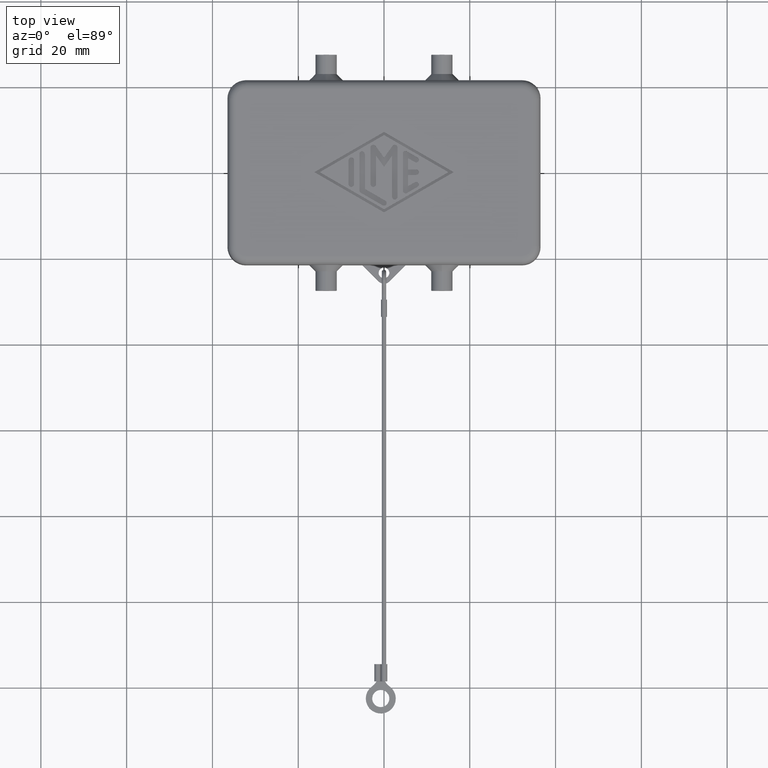
[diagram: clean part render]
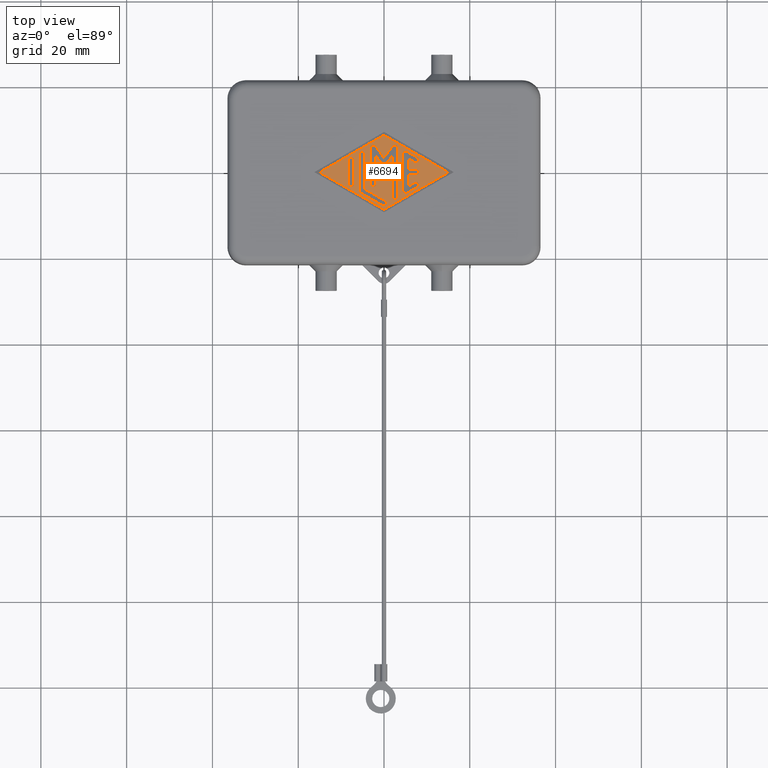
[diagram: same view with one face highlighted and labeled with its STEP entity id]
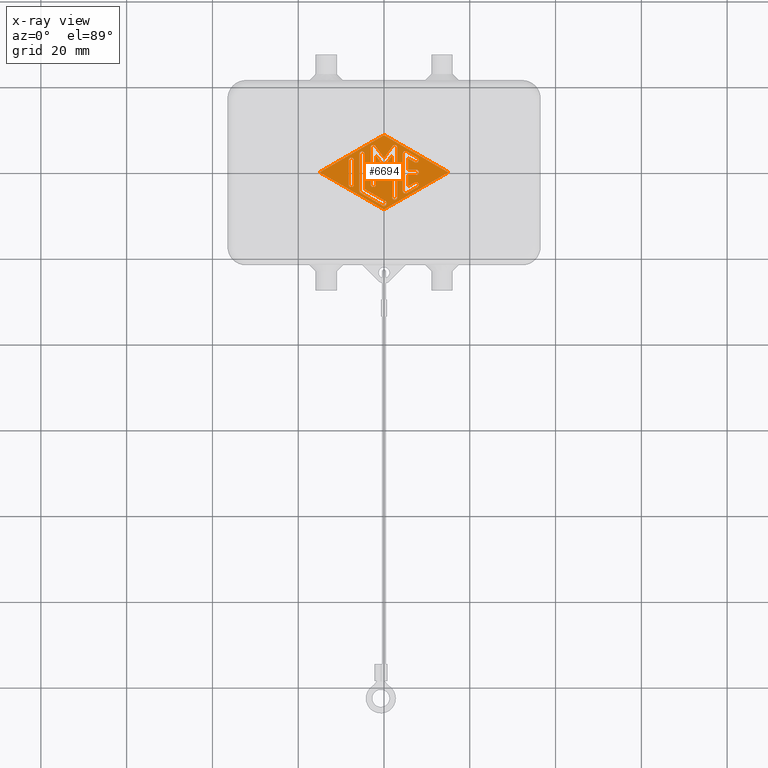
[diagram: x-ray of the same camera — body ghosted, the highlighted face saturated]
A machine part, top view. The second image highlights one B-rep face of the part: STEP entity #6694.
The next image is the same camera in x-ray: the body ghosted, the highlighted face saturated — about 0% of this face is hidden behind the body in this view.
In plain terms, the highlighted planar face has unit normal (0, 0, 1).
Its self-contained STEP definition (entity closure, byte-faithful):
#2249=CARTESIAN_POINT('',(4.374999999999995,4.325721487528326,12.000000000000002));
#2250=VERTEX_POINT('',#2249);
#2257=CARTESIAN_POINT('',(4.374999999999995,-4.325721487528320,12.000000000000002));
#2258=VERTEX_POINT('',#2257);
#2259=CARTESIAN_POINT('',(4.374999999999995,-4.325721487528320,12.000000000000002));
#2260=DIRECTION('',(0.0,1.0,0.0));
#2261=VECTOR('',#2260,8.651442975056646);
#2262=LINE('',#2259,#2261);
#2263=EDGE_CURVE('',#2258,#2250,#2262,.T.);
#2289=CARTESIAN_POINT('',(5.312326533430989,-4.867087478808698,12.000000000000002));
#2290=VERTEX_POINT('',#2289);
#2291=CARTESIAN_POINT('',(5.000000000000001,-4.325721487528320,12.000000000000002));
#2292=DIRECTION('',(0.0,0.0,-1.0));
#2293=DIRECTION('',(1.0,0.0,0.0));
#2294=AXIS2_PLACEMENT_3D('',#2291,#2292,#2293);
#2295=CIRCLE('',#2294,0.625000000000000);
#2296=EDGE_CURVE('',#2290,#2258,#2295,.T.);
#2321=CARTESIAN_POINT('',(7.812326533430980,-3.424779786501008,12.000000000000002));
#2322=VERTEX_POINT('',#2321);
#2323=CARTESIAN_POINT('',(7.812326533430980,-3.424779786501008,12.000000000000002));
#2324=DIRECTION('',(-0.866185586048600,-0.499722453489578,0.0));
#2325=VECTOR('',#2324,2.886217503808382);
#2326=LINE('',#2323,#2325);
#2327=EDGE_CURVE('',#2322,#2290,#2326,.T.);
#2353=CARTESIAN_POINT('',(7.187673466569009,-2.342047803940258,12.000000000000002));
#2354=VERTEX_POINT('',#2353);
#2355=CARTESIAN_POINT('',(7.499999999999995,-2.883413795220633,12.000000000000002));
#2356=DIRECTION('',(0.0,0.0,-1.000000000000000));
#2357=DIRECTION('',(-0.499722453489577,0.866185586048601,0.0));
#2358=AXIS2_PLACEMENT_3D('',#2355,#2356,#2357);
#2359=CIRCLE('',#2358,0.625000000000002);
#2360=EDGE_CURVE('',#2354,#2322,#2359,.T.);
#2385=CARTESIAN_POINT('',(5.624999999999995,-3.243590188499308,12.000000000000002));
#2386=VERTEX_POINT('',#2385);
#2387=CARTESIAN_POINT('',(5.624999999999995,-3.243590188499308,12.000000000000002));
#2388=DIRECTION('',(0.866185586048600,0.499722453489578,0.0));
#2389=VECTOR('',#2388,1.804086204779372);
#2390=LINE('',#2387,#2389);
#2391=EDGE_CURVE('',#2386,#2354,#2390,.T.);
#2416=CARTESIAN_POINT('',(5.624999999999995,-0.625000000000001,12.000000000000002));
#2417=VERTEX_POINT('',#2416);
#2418=CARTESIAN_POINT('',(5.624999999999995,-0.625000000000001,12.000000000000002));
#2419=DIRECTION('',(0.0,-1.0,0.0));
#2420=VECTOR('',#2419,2.618590188499306);
#2421=LINE('',#2418,#2420);
#2422=EDGE_CURVE('',#2417,#2386,#2421,.T.);
#2447=CARTESIAN_POINT('',(7.499999999999995,-0.625000000000001,12.000000000000002));
#2448=VERTEX_POINT('',#2447);
#2449=CARTESIAN_POINT('',(7.499999999999995,-0.625000000000001,12.000000000000002));
#2450=DIRECTION('',(-1.0,0.0,0.0));
#2451=VECTOR('',#2450,1.875000000000000);
#2452=LINE('',#2449,#2451);
#2453=EDGE_CURVE('',#2448,#2417,#2452,.T.);
#2479=CARTESIAN_POINT('',(7.499999999999995,0.624999999999999,12.000000000000002));
#2480=VERTEX_POINT('',#2479);
#2481=CARTESIAN_POINT('',(7.499999999999995,-1.312233E-015,12.000000000000002));
#2482=DIRECTION('',(0.0,0.0,-1.0));
#2483=DIRECTION('',(0.0,1.0,0.0));
#2484=AXIS2_PLACEMENT_3D('',#2481,#2482,#2483);
#2485=CIRCLE('',#2484,0.625000000000000);
#2486=EDGE_CURVE('',#2480,#2448,#2485,.T.);
#2511=CARTESIAN_POINT('',(5.624999999999995,0.624999999999996,12.000000000000002));
#2512=VERTEX_POINT('',#2511);
#2513=CARTESIAN_POINT('',(5.624999999999995,0.624999999999996,12.000000000000002));
#2514=DIRECTION('',(1.0,0.0,0.0));
#2515=VECTOR('',#2514,1.875000000000000);
#2516=LINE('',#2513,#2515);
#2517=EDGE_CURVE('',#2512,#2480,#2516,.T.);
#2542=CARTESIAN_POINT('',(5.624999999999995,3.243590188499305,12.000000000000002));
#2543=VERTEX_POINT('',#2542);
#2544=CARTESIAN_POINT('',(5.624999999999995,3.243590188499305,12.000000000000002));
#2545=DIRECTION('',(0.0,-1.0,0.0));
#2546=VECTOR('',#2545,2.618590188499309);
#2547=LINE('',#2544,#2546);
#2548=EDGE_CURVE('',#2543,#2512,#2547,.T.);
#2573=CARTESIAN_POINT('',(7.187673466569010,2.342047803940258,12.000000000000002));
#2574=VERTEX_POINT('',#2573);
#2575=CARTESIAN_POINT('',(7.187673466569010,2.342047803940258,12.000000000000002));
#2576=DIRECTION('',(-0.866185586048600,0.499722453489577,0.0));
#2577=VECTOR('',#2576,1.804086204779372);
#2578=LINE('',#2575,#2577);
#2579=EDGE_CURVE('',#2574,#2543,#2578,.T.);
#2605=CARTESIAN_POINT('',(7.812326533430981,3.424779786501011,12.000000000000002));
#2606=VERTEX_POINT('',#2605);
#2607=CARTESIAN_POINT('',(7.499999999999995,2.883413795220633,12.000000000000002));
#2608=DIRECTION('',(0.0,0.0,-1.0));
#2609=DIRECTION('',(0.499722453489576,0.866185586048601,0.0));
#2610=AXIS2_PLACEMENT_3D('',#2607,#2608,#2609);
#2611=CIRCLE('',#2610,0.625000000000000);
#2612=EDGE_CURVE('',#2606,#2574,#2611,.T.);
#2637=CARTESIAN_POINT('',(5.312326533430981,4.867087478808699,12.000000000000002));
#2638=VERTEX_POINT('',#2637);
#2639=CARTESIAN_POINT('',(5.312326533430981,4.867087478808699,12.000000000000002));
#2640=DIRECTION('',(0.866185586048601,-0.499722453489576,0.0));
#2641=VECTOR('',#2640,2.886217503808390);
#2642=LINE('',#2639,#2641);
#2643=EDGE_CURVE('',#2638,#2606,#2642,.T.);
#2667=CARTESIAN_POINT('',(4.999999999999997,4.325721487528326,12.000000000000002));
#2668=DIRECTION('',(0.0,0.0,-1.0));
#2669=DIRECTION('',(-0.499722453489577,-0.866185586048601,0.0));
#2670=AXIS2_PLACEMENT_3D('',#2667,#2668,#2669);
#2671=CIRCLE('',#2670,0.625000000000000);
#2672=EDGE_CURVE('',#2250,#2638,#2671,.T.);
#2716=CARTESIAN_POINT('',(-7.000000000000004,2.811298410605247,12.000000000000002));
#2717=VERTEX_POINT('',#2716);
#2724=CARTESIAN_POINT('',(-8.250000000000004,2.811298410605247,12.000000000000002));
#2725=VERTEX_POINT('',#2724);
#2726=CARTESIAN_POINT('',(-7.625000000000004,2.811298410605247,12.000000000000002));
#2727=DIRECTION('',(0.0,0.0,-1.0));
#2728=DIRECTION('',(-1.0,0.0,0.0));
#2729=AXIS2_PLACEMENT_3D('',#2726,#2727,#2728);
#2730=CIRCLE('',#2729,0.625000000000000);
#2731=EDGE_CURVE('',#2725,#2717,#2730,.T.);
#2756=CARTESIAN_POINT('',(-8.250000000000004,-2.811298410605247,12.000000000000002));
#2757=VERTEX_POINT('',#2756);
#2758=CARTESIAN_POINT('',(-8.250000000000004,-2.811298410605247,12.000000000000002));
#2759=DIRECTION('',(0.0,1.0,0.0));
#2760=VECTOR('',#2759,5.622596821210494);
#2761=LINE('',#2758,#2760);
#2762=EDGE_CURVE('',#2757,#2725,#2761,.T.);
#2788=CARTESIAN_POINT('',(-7.000000000000004,-2.811298410605247,12.000000000000002));
#2789=VERTEX_POINT('',#2788);
#2790=CARTESIAN_POINT('',(-7.625000000000004,-2.811298410605247,12.000000000000002));
#2791=DIRECTION('',(0.0,0.0,-1.0));
#2792=DIRECTION('',(1.0,0.0,0.0));
#2793=AXIS2_PLACEMENT_3D('',#2790,#2791,#2792);
#2794=CIRCLE('',#2793,0.625000000000000);
#2795=EDGE_CURVE('',#2789,#2757,#2794,.T.);
#2818=CARTESIAN_POINT('',(-7.000000000000004,2.811298410605247,12.000000000000002));
#2819=DIRECTION('',(0.0,-1.0,0.0));
#2820=VECTOR('',#2819,5.622596821210494);
#2821=LINE('',#2818,#2820);
#2822=EDGE_CURVE('',#2717,#2789,#2821,.T.);
#2855=CARTESIAN_POINT('',(-3.193338E-015,-8.653445624047905,12.000000000000002));
#2856=VERTEX_POINT('',#2855);
#2863=CARTESIAN_POINT('',(-14.999305748349697,5.551115E-016,12.000000000000002));
#2864=VERTEX_POINT('',#2863);
#2865=CARTESIAN_POINT('',(-14.999305748349697,5.551115E-016,12.000000000000002));
#2866=DIRECTION('',(0.866185586048600,-0.499722453489577,0.0));
#2867=VECTOR('',#2866,17.316503518344284);
#2868=LINE('',#2865,#2867);
#2869=EDGE_CURVE('',#2864,#2856,#2868,.T.);
#2893=CARTESIAN_POINT('',(14.999305748349691,1.379107E-015,12.000000000000002));
#2894=VERTEX_POINT('',#2893);
#2901=CARTESIAN_POINT('',(-3.193338E-015,-8.653445624047905,12.000000000000002));
#2902=DIRECTION('',(0.866185586048600,0.499722453489577,0.0));
#2903=VECTOR('',#2902,17.316503518344287);
#2904=LINE('',#2901,#2903);
#2905=EDGE_CURVE('',#2856,#2894,#2904,.T.);
#2924=CARTESIAN_POINT('',(-3.193338E-015,8.653445624047901,12.000000000000002));
#2925=VERTEX_POINT('',#2924);
#2932=CARTESIAN_POINT('',(14.999305748349691,1.379107E-015,12.000000000000002));
#2933=DIRECTION('',(-0.866185586048600,0.499722453489577,0.0));
#2934=VECTOR('',#2933,17.316503518344284);
#2935=LINE('',#2932,#2934);
#2936=EDGE_CURVE('',#2894,#2925,#2935,.T.);
#2954=CARTESIAN_POINT('',(-3.193338E-015,8.653445624047901,12.000000000000002));
#2955=DIRECTION('',(-0.866185586048600,-0.499722453489577,0.0));
#2956=VECTOR('',#2955,17.316503518344284);
#2957=LINE('',#2954,#2956);
#2958=EDGE_CURVE('',#2925,#2864,#2957,.T.);
#3121=CARTESIAN_POINT('',(-5.750000000000005,4.253606102912936,12.000000000000002));
#3122=VERTEX_POINT('',#3121);
#3129=CARTESIAN_POINT('',(-5.750000000000003,-4.253606102912952,12.000000000000002));
#3130=VERTEX_POINT('',#3129);
#3131=CARTESIAN_POINT('',(-5.750000000000003,-4.253606102912952,12.000000000000002));
#3132=DIRECTION('',(0.0,1.0,0.0));
#3133=VECTOR('',#3132,8.507212205825887);
#3134=LINE('',#3131,#3133);
#3135=EDGE_CURVE('',#3130,#3122,#3134,.T.);
#3161=CARTESIAN_POINT('',(-5.437326533430992,-4.794972094193331,12.000000000000002));
#3162=VERTEX_POINT('',#3161);
#3163=CARTESIAN_POINT('',(-5.125000000000005,-4.253606102912952,12.000000000000002));
#3164=DIRECTION('',(0.0,0.0,-1.0));
#3165=DIRECTION('',(-1.0,0.0,0.0));
#3166=AXIS2_PLACEMENT_3D('',#3163,#3164,#3165);
#3167=CIRCLE('',#3166,0.625000000000000);
#3168=EDGE_CURVE('',#3162,#3130,#3167,.T.);
#3193=CARTESIAN_POINT('',(-0.312326533430986,-7.751702863424086,12.000000000000002));
#3194=VERTEX_POINT('',#3193);
#3195=CARTESIAN_POINT('',(-0.312326533430986,-7.751702863424086,12.000000000000002));
#3196=DIRECTION('',(-0.866185586048602,0.499722453489575,0.0));
#3197=VECTOR('',#3196,5.916745882807200);
#3198=LINE('',#3195,#3197);
#3199=EDGE_CURVE('',#3194,#3162,#3198,.T.);
#3225=CARTESIAN_POINT('',(0.312326533430988,-6.668970880863334,12.000000000000002));
#3226=VERTEX_POINT('',#3225);
#3227=CARTESIAN_POINT('',(2.120750E-015,-7.210336872143708,12.000000000000002));
#3228=DIRECTION('',(0.0,0.0,-1.000000000000000));
#3229=DIRECTION('',(-0.499722453489577,-0.866185586048601,0.0));
#3230=AXIS2_PLACEMENT_3D('',#3227,#3228,#3229);
#3231=CIRCLE('',#3230,0.624999999999998);
#3232=EDGE_CURVE('',#3226,#3194,#3231,.T.);
#3257=CARTESIAN_POINT('',(-4.500000000000013,-3.892628650037788,12.000000000000002));
#3258=VERTEX_POINT('',#3257);
#3259=CARTESIAN_POINT('',(-4.500000000000013,-3.892628650037788,12.000000000000002));
#3260=DIRECTION('',(0.866185586048603,-0.499722453489573,0.0));
#3261=VECTOR('',#3260,5.555768429932029);
#3262=LINE('',#3259,#3261);
#3263=EDGE_CURVE('',#3258,#3226,#3262,.T.);
#3288=CARTESIAN_POINT('',(-4.500000000000005,4.253606102912936,12.000000000000002));
#3289=VERTEX_POINT('',#3288);
#3290=CARTESIAN_POINT('',(-4.500000000000005,4.253606102912936,12.000000000000002));
#3291=DIRECTION('',(0.0,-1.0,0.0));
#3292=VECTOR('',#3291,8.146234752950724);
#3293=LINE('',#3290,#3292);
#3294=EDGE_CURVE('',#3289,#3258,#3293,.T.);
#3318=CARTESIAN_POINT('',(-5.125000000000005,4.253606102912936,12.000000000000002));
#3319=DIRECTION('',(0.0,0.0,-1.0));
#3320=DIRECTION('',(1.0,0.0,0.0));
#3321=AXIS2_PLACEMENT_3D('',#3318,#3319,#3320);
#3322=CIRCLE('',#3321,0.625000000000000);
#3323=EDGE_CURVE('',#3122,#3289,#3322,.T.);
#3359=CARTESIAN_POINT('',(-3.193338E-015,1.250000000000000,12.000000000000002));
#3360=VERTEX_POINT('',#3359);
#3367=CARTESIAN_POINT('',(1.874999999999996,3.839299689476821,12.000000000000002));
#3368=VERTEX_POINT('',#3367);
#3369=CARTESIAN_POINT('',(1.874999999999996,3.839299689476821,12.000000000000002));
#3370=DIRECTION('',(-0.586507735518138,-0.809943625308197,0.0));
#3371=VECTOR('',#3370,3.196888781600754);
#3372=LINE('',#3369,#3371);
#3373=EDGE_CURVE('',#3368,#3360,#3372,.T.);
#3398=CARTESIAN_POINT('',(1.874999999999996,-5.768029179836017,12.000000000000002));
#3399=VERTEX_POINT('',#3398);
#3400=CARTESIAN_POINT('',(1.874999999999996,-5.768029179836017,12.000000000000002));
#3401=DIRECTION('',(0.0,1.0,0.0));
#3402=VECTOR('',#3401,9.607328869312838);
#3403=LINE('',#3400,#3402);
#3404=EDGE_CURVE('',#3399,#3368,#3403,.T.);
#3430=CARTESIAN_POINT('',(3.124999999999995,-5.768029179836017,12.000000000000002));
#3431=VERTEX_POINT('',#3430);
#3432=CARTESIAN_POINT('',(2.499999999999995,-5.768029179836017,12.000000000000002));
#3433=DIRECTION('',(0.0,0.0,-1.0));
#3434=DIRECTION('',(-1.0,0.0,0.0));
#3435=AXIS2_PLACEMENT_3D('',#3432,#3433,#3434);
#3436=CIRCLE('',#3435,0.625000000000000);
#3437=EDGE_CURVE('',#3431,#3399,#3436,.T.);
#3462=CARTESIAN_POINT('',(3.124999999999995,5.768029179836017,12.000000000000002));
#3463=VERTEX_POINT('',#3462);
#3464=CARTESIAN_POINT('',(3.124999999999995,5.768029179836017,12.000000000000002));
#3465=DIRECTION('',(0.0,-1.0,0.0));
#3466=VECTOR('',#3465,11.536058359672033);
#3467=LINE('',#3464,#3466);
#3468=EDGE_CURVE('',#3463,#3431,#3467,.T.);
#3494=CARTESIAN_POINT('',(1.993785234182371,6.134596514534854,12.000000000000002));
#3495=VERTEX_POINT('',#3494);
#3496=CARTESIAN_POINT('',(2.499999999999995,5.768029179836017,12.000000000000002));
#3497=DIRECTION('',(0.0,0.0,-1.0));
#3498=DIRECTION('',(1.0,0.0,0.0));
#3499=AXIS2_PLACEMENT_3D('',#3496,#3497,#3498);
#3500=CIRCLE('',#3499,0.625000000000000);
#3501=EDGE_CURVE('',#3495,#3463,#3500,.T.);
#3526=CARTESIAN_POINT('',(-3.193338E-015,3.381259187733842,12.000000000000002));
#3527=VERTEX_POINT('',#3526);
#3528=CARTESIAN_POINT('',(-3.193338E-015,3.381259187733842,12.000000000000002));
#3529=DIRECTION('',(0.586507735518138,0.809943625308197,0.0));
#3530=VECTOR('',#3529,3.399418478975398);
#3531=LINE('',#3528,#3530);
#3532=EDGE_CURVE('',#3527,#3495,#3531,.T.);
#3557=CARTESIAN_POINT('',(-1.993785234182382,6.134596514534851,12.000000000000002));
#3558=VERTEX_POINT('',#3557);
#3559=CARTESIAN_POINT('',(-1.993785234182382,6.134596514534851,12.000000000000002));
#3560=DIRECTION('',(0.586507735518140,-0.809943625308196,0.0));
#3561=VECTOR('',#3560,3.399418478975399);
#3562=LINE('',#3559,#3561);
#3563=EDGE_CURVE('',#3558,#3527,#3562,.T.);
#3589=CARTESIAN_POINT('',(-3.125000000000005,5.768029179836014,12.000000000000002));
#3590=VERTEX_POINT('',#3589);
#3591=CARTESIAN_POINT('',(-2.500000000000005,5.768029179836014,12.000000000000002));
#3592=DIRECTION('',(0.0,0.0,-1.0));
#3593=DIRECTION('',(0.809943625308196,0.586507735518140,0.0));
#3594=AXIS2_PLACEMENT_3D('',#3591,#3592,#3593);
#3595=CIRCLE('',#3594,0.625000000000000);
#3596=EDGE_CURVE('',#3590,#3558,#3595,.T.);
#3621=CARTESIAN_POINT('',(-3.125000000000005,-2.811298410605247,12.000000000000002));
#3622=VERTEX_POINT('',#3621);
#3623=CARTESIAN_POINT('',(-3.125000000000005,-2.811298410605247,12.000000000000002));
#3624=DIRECTION('',(0.0,1.0,0.0));
#3625=VECTOR('',#3624,8.579327590441260);
#3626=LINE('',#3623,#3625);
#3627=EDGE_CURVE('',#3622,#3590,#3626,.T.);
#3653=CARTESIAN_POINT('',(-1.875000000000006,-2.811298410605247,12.000000000000002));
#3654=VERTEX_POINT('',#3653);
#3655=CARTESIAN_POINT('',(-2.500000000000005,-2.811298410605247,12.000000000000002));
#3656=DIRECTION('',(0.0,0.0,-1.0));
#3657=DIRECTION('',(-1.0,0.0,0.0));
#3658=AXIS2_PLACEMENT_3D('',#3655,#3656,#3657);
#3659=CIRCLE('',#3658,0.624999999999999);
#3660=EDGE_CURVE('',#3654,#3622,#3659,.T.);
#3685=CARTESIAN_POINT('',(-1.875000000000007,3.839299689476817,12.000000000000002));
#3686=VERTEX_POINT('',#3685);
#3687=CARTESIAN_POINT('',(-1.875000000000007,3.839299689476817,12.000000000000002));
#3688=DIRECTION('',(0.0,-1.0,0.0));
#3689=VECTOR('',#3688,6.650598100082064);
#3690=LINE('',#3687,#3689);
#3691=EDGE_CURVE('',#3686,#3654,#3690,.T.);
#3714=CARTESIAN_POINT('',(-3.193338E-015,1.250000000000000,12.000000000000002));
#3715=DIRECTION('',(-0.586507735518140,0.809943625308196,0.0));
#3716=VECTOR('',#3715,3.196888781600754);
#3717=LINE('',#3714,#3716);
#3718=EDGE_CURVE('',#3360,#3686,#3717,.T.);
#6638=CARTESIAN_POINT('',(0.0,0.0,12.000000000000002));
#6639=DIRECTION('',(0.0,0.0,1.0));
#6640=DIRECTION('',(1.0,0.0,0.0));
#6641=AXIS2_PLACEMENT_3D('',#6638,#6639,#6640);
#6642=PLANE('',#6641);
#6643=ORIENTED_EDGE('',*,*,#2869,.T.);
#6644=ORIENTED_EDGE('',*,*,#2905,.T.);
#6645=ORIENTED_EDGE('',*,*,#2936,.T.);
#6646=ORIENTED_EDGE('',*,*,#2958,.T.);
#6647=EDGE_LOOP('',(#6643,#6644,#6645,#6646));
#6648=FACE_OUTER_BOUND('',#6647,.T.);
#6649=ORIENTED_EDGE('',*,*,#2263,.T.);
#6650=ORIENTED_EDGE('',*,*,#2672,.T.);
#6651=ORIENTED_EDGE('',*,*,#2643,.T.);
#6652=ORIENTED_EDGE('',*,*,#2612,.T.);
#6653=ORIENTED_EDGE('',*,*,#2579,.T.);
#6654=ORIENTED_EDGE('',*,*,#2548,.T.);
#6655=ORIENTED_EDGE('',*,*,#2517,.T.);
#6656=ORIENTED_EDGE('',*,*,#2486,.T.);
#6657=ORIENTED_EDGE('',*,*,#2453,.T.);
#6658=ORIENTED_EDGE('',*,*,#2422,.T.);
#6659=ORIENTED_EDGE('',*,*,#2391,.T.);
#6660=ORIENTED_EDGE('',*,*,#2360,.T.);
#6661=ORIENTED_EDGE('',*,*,#2327,.T.);
#6662=ORIENTED_EDGE('',*,*,#2296,.T.);
#6663=EDGE_LOOP('',(#6649,#6650,#6651,#6652,#6653,#6654,#6655,#6656,#6657,#6658,#6659,#6660,#6661,#6662));
#6664=FACE_BOUND('',#6663,.T.);
#6665=ORIENTED_EDGE('',*,*,#2731,.T.);
#6666=ORIENTED_EDGE('',*,*,#2822,.T.);
#6667=ORIENTED_EDGE('',*,*,#2795,.T.);
#6668=ORIENTED_EDGE('',*,*,#2762,.T.);
#6669=EDGE_LOOP('',(#6665,#6666,#6667,#6668));
#6670=FACE_BOUND('',#6669,.T.);
#6671=ORIENTED_EDGE('',*,*,#3135,.T.);
#6672=ORIENTED_EDGE('',*,*,#3323,.T.);
#6673=ORIENTED_EDGE('',*,*,#3294,.T.);
#6674=ORIENTED_EDGE('',*,*,#3263,.T.);
#6675=ORIENTED_EDGE('',*,*,#3232,.T.);
#6676=ORIENTED_EDGE('',*,*,#3199,.T.);
#6677=ORIENTED_EDGE('',*,*,#3168,.T.);
#6678=EDGE_LOOP('',(#6671,#6672,#6673,#6674,#6675,#6676,#6677));
#6679=FACE_BOUND('',#6678,.T.);
#6680=ORIENTED_EDGE('',*,*,#3373,.T.);
#6681=ORIENTED_EDGE('',*,*,#3718,.T.);
#6682=ORIENTED_EDGE('',*,*,#3691,.T.);
#6683=ORIENTED_EDGE('',*,*,#3660,.T.);
#6684=ORIENTED_EDGE('',*,*,#3627,.T.);
#6685=ORIENTED_EDGE('',*,*,#3596,.T.);
#6686=ORIENTED_EDGE('',*,*,#3563,.T.);
#6687=ORIENTED_EDGE('',*,*,#3532,.T.);
#6688=ORIENTED_EDGE('',*,*,#3501,.T.);
#6689=ORIENTED_EDGE('',*,*,#3468,.T.);
#6690=ORIENTED_EDGE('',*,*,#3437,.T.);
#6691=ORIENTED_EDGE('',*,*,#3404,.T.);
#6692=EDGE_LOOP('',(#6680,#6681,#6682,#6683,#6684,#6685,#6686,#6687,#6688,#6689,#6690,#6691));
#6693=FACE_BOUND('',#6692,.T.);
#6694=ADVANCED_FACE('',(#6648,#6664,#6670,#6679,#6693),#6642,.T.);